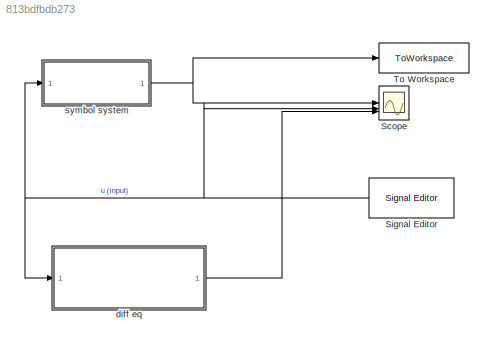
MODEL slx_813bdfbdb273
KIND model
CONFIG AbsTol = auto
CONFIG EnableMultiTasking = off
CONFIG FixedStep = Ts
CONFIG MaxStep = auto
CONFIG MinStep = auto
CONFIG RelTol = 1e-3
CONFIG SampleTimeConstraint = Unconstrained
CONFIG SolverName = FixedStepAuto
CONFIG StartTime = 0.0
CONFIG StopTime = StopTime
BLOCK [Scope] Scope
  Floating = off
  NumInputPorts = 3
  ScopeSpecificationString = Simulink.scopes.TimeScopeBlockCfg('CurrentConfiguration', extmgr.ConfigurationSet(extmgr.Configuration('Core','General UI',true),extmgr.Configuration('Core','Source UI',true),extmgr.Configuration('Sources','WiredSimulink',true),extmgr.Configuration('Visuals','Time Domain',true,'SerializedDisplays',{struct('MinYLimReal','-2.37998','MaxYLimReal','4.16347','YLabelReal','','MinYLimMag','0.00000','MaxY...<+1607ch>
BLOCK [Reference] Signal Editor  REF=SignalEditorBlockLib/Signal Editor
  LibrarySourceBlock = simulink/Sources/Signal Editor
  NameLocation = top
  SourceBlock = SignalEditorBlockLib/Signal Editor
  SourceType = SignalEditor
  UserDataPersistent = on
BLOCK [ToWorkspace] To Workspace
  FixptAsFi = on
  MaxDataPoints = inf
  SampleTime = -1
  SaveFormat = Timeseries
  VariableName = simout
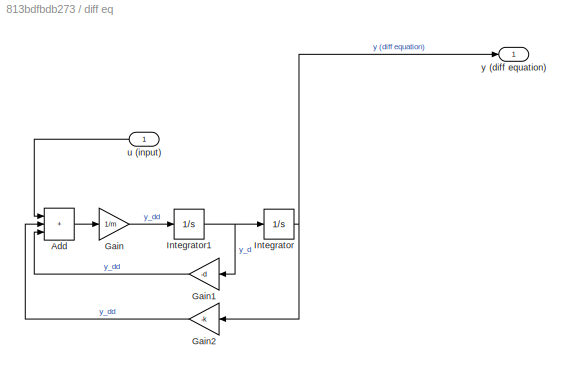
BLOCK [SubSystem] diff eq
BLOCK [Sum] diff eq/Add
  IconShape = rectangular
  Inputs = +++
BLOCK [Gain] diff eq/Gain
  Gain = 1/m
BLOCK [Gain] diff eq/Gain1
  Gain = -d
  NameLocation = top
BLOCK [Gain] diff eq/Gain2
  Gain = -k
  NameLocation = top
BLOCK [Integrator] diff eq/Integrator
  InitialCondition = Init_Pos
BLOCK [Integrator] diff eq/Integrator1
  InitialCondition = Init_V
BLOCK [Inport] diff eq/u (input)
BLOCK [Outport] diff eq/y (diff equation)
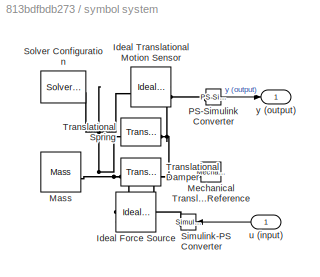
BLOCK [SubSystem] symbol system
BLOCK [Reference] symbol system/Ideal Force Source  REF=fl_lib/Mechanical/Mechanical Sources/Ideal Force Source
  NameLocation = top
  SourceBlock = fl_lib/Mechanical/Mechanical Sources/Ideal Force Source
  SourceType = Ideal Force Source
BLOCK [Reference] symbol system/Ideal Translational Motion Sensor  REF=fl_lib/Mechanical/Mechanical Sensors/Ideal Translational
Motion Sensor
  SourceBlock = fl_lib/Mechanical/Mechanical Sensors/Ideal Translational\nMotion Sensor
  SourceType = Ideal Translational\nMotion Sensor
BLOCK [Reference] symbol system/Mass  REF=fl_lib/Mechanical/Translational
Elements/Mass
  SourceBlock = fl_lib/Mechanical/Translational\nElements/Mass
  SourceType = Mass
BLOCK [Reference] symbol system/Mechanical Translational Reference  REF=fl_lib/Mechanical/Translational
Elements/Mechanical
Translational
Reference
  NameLocation = top
  SourceBlock = fl_lib/Mechanical/Translational\nElements/Mechanical\nTranslational\nReference
  SourceType = Mechanical\nTranslational\nReference
BLOCK [Reference] symbol system/PS-Simulink Converter  REF=nesl_utility/PS-Simulink
Converter
  SourceBlock = nesl_utility/PS-Simulink\nConverter
  SourceType = PS-Simulink\nConverter
BLOCK [Reference] symbol system/Simulink-PS Converter  REF=nesl_utility/Simulink-PS
Converter
  NameLocation = top
  SourceBlock = nesl_utility/Simulink-PS\nConverter
  SourceType = Simulink-PS\nConverter
BLOCK [Reference] symbol system/Solver Configuration  REF=nesl_utility/Solver
Configuration
  SourceBlock = nesl_utility/Solver\nConfiguration
  SourceType = Solver\nConfiguration
BLOCK [Reference] symbol system/Translational Damper  REF=fl_lib/Mechanical/Translational
Elements/Translational Damper
  SourceBlock = fl_lib/Mechanical/Translational\nElements/Translational Damper
  SourceType = Translational Damper
BLOCK [Reference] symbol system/Translational Spring  REF=fl_lib/Mechanical/Translational
Elements/Translational Spring
  SourceBlock = fl_lib/Mechanical/Translational\nElements/Translational Spring
  SourceType = Translational Spring
BLOCK [Inport] symbol system/u (input)
BLOCK [Outport] symbol system/y (output)
NET Signal Editor:1 -> Scope:2, diff eq:1, symbol system:1
LINE diff eq/Add:1 -> diff eq/Gain:1
LINE diff eq/Gain1:1 -> diff eq/Add:3
LINE diff eq/Gain2:1 -> diff eq/Add:2
LINE diff eq/Gain:1 -> diff eq/Integrator1:1
NET diff eq/Integrator1:1 -> diff eq/Gain1:1, diff eq/Integrator:1
NET diff eq/Integrator:1 -> diff eq/Gain2:1, diff eq/y (diff equation):1
LINE diff eq/u (input):1 -> diff eq/Add:1
LINE diff eq:1 -> Scope:3
LINE symbol system/PS-Simulink Converter:1 -> symbol system/y (output):1
LINE symbol system/u (input):1 -> symbol system/Simulink-PS Converter:1
NET symbol system:1 -> Scope:1, To Workspace:1
PNET net1: symbol system/Ideal Force Source:LConn1 -- symbol system/Ideal Translational Motion Sensor:LConn1 -- symbol system/Mass:LConn1 -- symbol system/Solver Configuration:RConn1 -- symbol system/Translational Damper:LConn1 -- symbol system/Translational Spring:LConn1
PLINE symbol system/Ideal Force Source:RConn1 -- symbol system/Simulink-PS Converter:RConn1
PNET net2: symbol system/Ideal Force Source:RConn2 -- symbol system/Ideal Translational Motion Sensor:RConn1 -- symbol system/Mechanical Translational Reference:LConn1 -- symbol system/Translational Damper:RConn1 -- symbol system/Translational Spring:RConn1
PLINE symbol system/Ideal Translational Motion Sensor:RConn2 -- symbol system/PS-Simulink Converter:LConn1
note: NET lines group one-source signal fan-out (src -> all destinations, sorted); 1:1 wires keep LINE; PNET lines group multi-terminal physical nets as a canonical sorted terminal list (undirected conserving connections); 2-terminal nets keep the pairwise PLINE form
